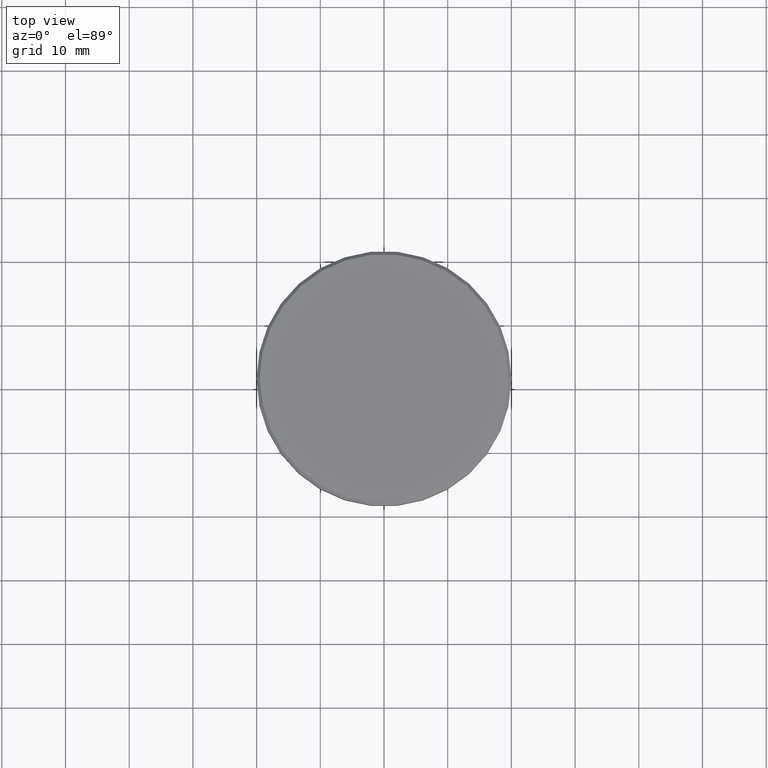
[diagram: clean part render]
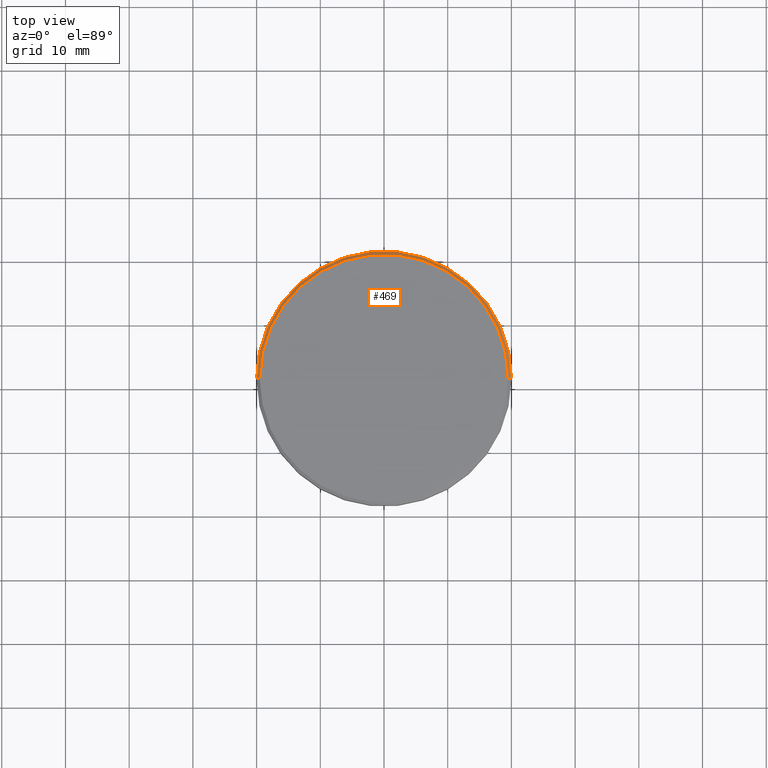
[diagram: same view with one face highlighted and labeled with its STEP entity id]
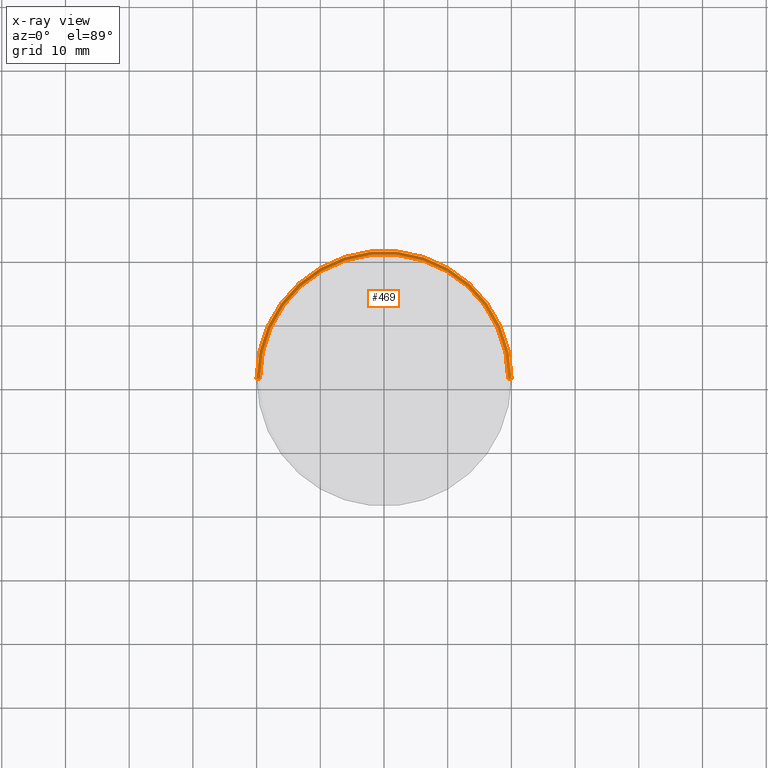
[diagram: x-ray of the same camera — body ghosted, the highlighted face saturated]
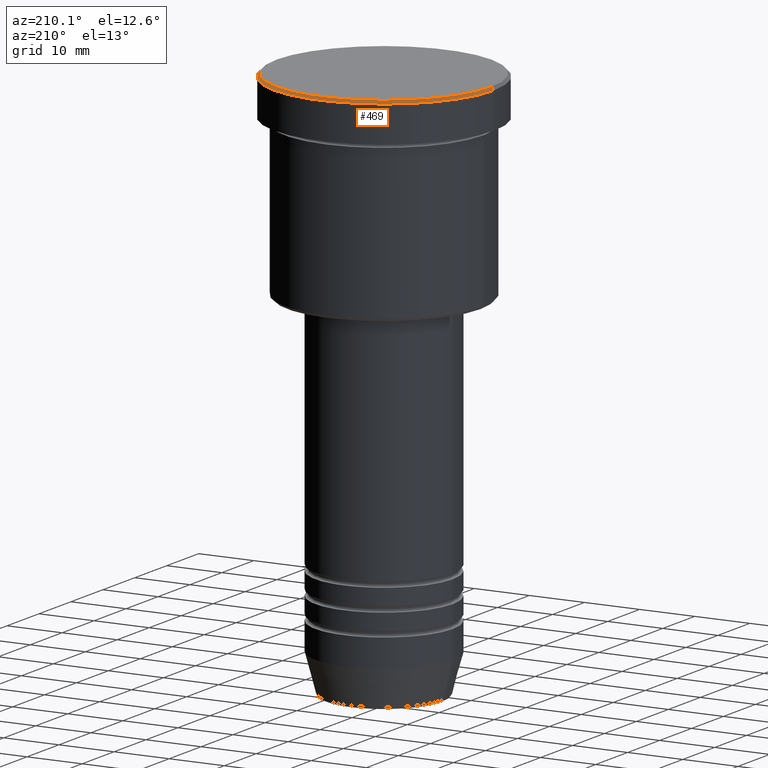
[diagram: same view with one face highlighted and labeled with its STEP entity id]
A machine part, top view. The second image highlights one B-rep face of the part: STEP entity #469.
The next image is the same camera in x-ray: the body ghosted, the highlighted face saturated — about 0% of this face is hidden behind the body in this view.
A second angle (auxiliary view) of the same face is appended — the face is thin or edge-on in the first view.
In plain terms, the highlighted conical surface has half-angle 45 deg.
Its self-contained STEP definition (entity closure, byte-faithful):
#58 = CARTESIAN_POINT ( 'NONE',  ( -19.50000000000001776, 0.000000000000000000, 0.000000000000000000 ) ) ;
#60 = ORIENTED_EDGE ( 'NONE', *, *, #337, .F. ) ;
#170 = ORIENTED_EDGE ( 'NONE', *, *, #739, .F. ) ;
#172 = FACE_OUTER_BOUND ( 'NONE', #910, .T. ) ;
#184 = VERTEX_POINT ( 'NONE', #382 ) ;
#189 = VERTEX_POINT ( 'NONE', #1097 ) ;
#190 = DIRECTION ( 'NONE',  ( -0.000000000000000000, -0.000000000000000000, 1.000000000000000000 ) ) ;
#218 = LINE ( 'NONE', #572, #1140 ) ;
#231 = EDGE_CURVE ( 'NONE', #184, #1098, #533, .T. ) ;
#235 = CONICAL_SURFACE ( 'NONE', #253, 19.50000000000001776, 0.7853981633974482790 ) ;
#253 = AXIS2_PLACEMENT_3D ( 'NONE', #779, #654, #374 ) ;
#256 = AXIS2_PLACEMENT_3D ( 'NONE', #988, #190, #800 ) ;
#297 = ORIENTED_EDGE ( 'NONE', *, *, #231, .F. ) ;
#337 = EDGE_CURVE ( 'NONE', #510, #184, #218, .T. ) ;
#361 = VECTOR ( 'NONE', #825, 1000.000000000000114 ) ;
#374 = DIRECTION ( 'NONE',  ( -1.000000000000000000, 0.000000000000000000, 0.000000000000000000 ) ) ;
#382 = CARTESIAN_POINT ( 'NONE',  ( -20.00000000000000000, 2.449293598294706513E-15, -0.4999999999999831246 ) ) ;
#394 = DIRECTION ( 'NONE',  ( -0.7071067811865474617, 0.000000000000000000, -0.7071067811865474617 ) ) ;
#409 = CARTESIAN_POINT ( 'NONE',  ( 20.00000000000000000, 0.000000000000000000, -0.4999999999999831246 ) ) ;
#467 = LINE ( 'NONE', #1016, #361 ) ;
#469 = ADVANCED_FACE ( 'NONE', ( #172 ), #235, .T. ) ;
#484 = AXIS2_PLACEMENT_3D ( 'NONE', #1172, #619, #916 ) ;
#510 = VERTEX_POINT ( 'NONE', #58 ) ;
#533 = CIRCLE ( 'NONE', #484, 20.00000000000000000 ) ;
#572 = CARTESIAN_POINT ( 'NONE',  ( -19.50000000000001776, 0.000000000000000000, 0.000000000000000000 ) ) ;
#617 = ORIENTED_EDGE ( 'NONE', *, *, #868, .T. ) ;
#619 = DIRECTION ( 'NONE',  ( 0.000000000000000000, 0.000000000000000000, -1.000000000000000000 ) ) ;
#654 = DIRECTION ( 'NONE',  ( 0.000000000000000000, 0.000000000000000000, -1.000000000000000000 ) ) ;
#739 = EDGE_CURVE ( 'NONE', #189, #510, #946, .T. ) ;
#779 = CARTESIAN_POINT ( 'NONE',  ( 0.000000000000000000, 0.000000000000000000, 0.000000000000000000 ) ) ;
#800 = DIRECTION ( 'NONE',  ( 1.000000000000000000, 0.000000000000000000, 0.000000000000000000 ) ) ;
#825 = DIRECTION ( 'NONE',  ( 0.7071067811865474617, 8.659560562354932858E-17, -0.7071067811865474617 ) ) ;
#868 = EDGE_CURVE ( 'NONE', #189, #1098, #467, .T. ) ;
#910 = EDGE_LOOP ( 'NONE', ( #170, #617, #297, #60 ) ) ;
#916 = DIRECTION ( 'NONE',  ( 1.000000000000000000, 0.000000000000000000, 0.000000000000000000 ) ) ;
#946 = CIRCLE ( 'NONE', #256, 19.50000000000001776 ) ;
#988 = CARTESIAN_POINT ( 'NONE',  ( 0.000000000000000000, 0.000000000000000000, 0.000000000000000000 ) ) ;
#1016 = CARTESIAN_POINT ( 'NONE',  ( 19.50000000000001776, 2.388061258337340911E-15, 0.000000000000000000 ) ) ;
#1097 = CARTESIAN_POINT ( 'NONE',  ( 19.50000000000001776, 2.418677428316023515E-15, 0.000000000000000000 ) ) ;
#1098 = VERTEX_POINT ( 'NONE', #409 ) ;
#1140 = VECTOR ( 'NONE', #394, 1000.000000000000114 ) ;
#1172 = CARTESIAN_POINT ( 'NONE',  ( 0.000000000000000000, 0.000000000000000000, -0.4999999999999831246 ) ) ;